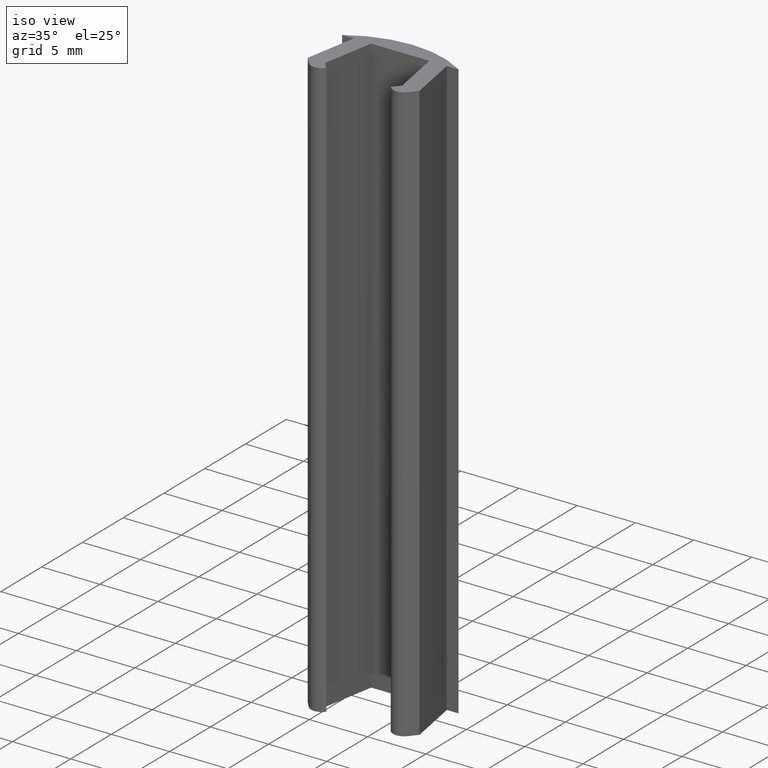
[diagram: clean part render]
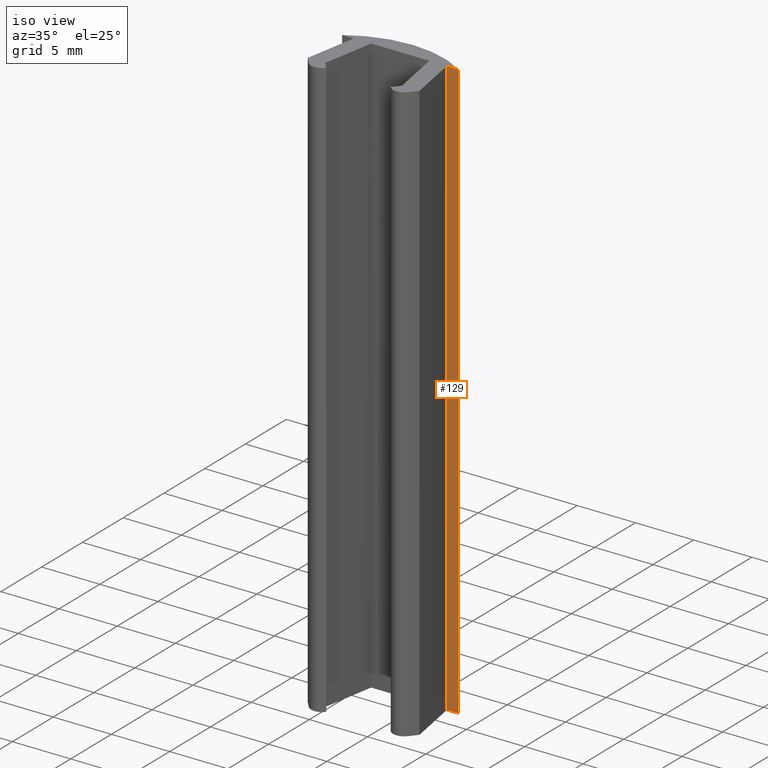
[diagram: same view with one face highlighted and labeled with its STEP entity id]
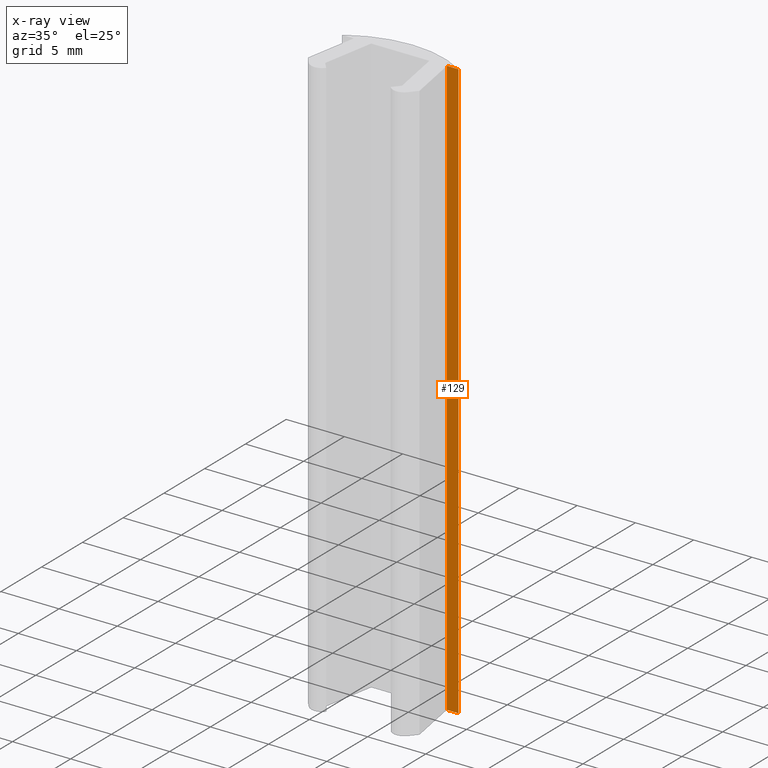
[diagram: x-ray of the same camera — body ghosted, the highlighted face saturated]
A machine part, iso view. The second image highlights one B-rep face of the part: STEP entity #129.
The next image is the same camera in x-ray: the body ghosted, the highlighted face saturated — about 0% of this face is hidden behind the body in this view.
In plain terms, the highlighted planar face has unit normal (0, 1, 0).
Its self-contained STEP definition (entity closure, byte-faithful):
#8 = CARTESIAN_POINT ( 'NONE',  ( 7.963294685841867200, 5.500000000000000000, 0.0000000000000000000 ) ) ;
#9 = CARTESIAN_POINT ( 'NONE',  ( 8.963294685248413900, 5.500000000429616300, 50.00000000000000000 ) ) ;
#39 = DIRECTION ( 'NONE',  ( 1.000000000000000000, 0.0000000000000000000, 0.0000000000000000000 ) ) ;
#49 = CARTESIAN_POINT ( 'NONE',  ( 7.963294686000001100, 5.500000000000000000, 50.00000000000000000 ) ) ;
#52 = CARTESIAN_POINT ( 'NONE',  ( 8.963294685248413900, 5.500000000429616300, 0.0000000000000000000 ) ) ;
#65 = CARTESIAN_POINT ( 'NONE',  ( 8.463294686000001100, 5.500000000000000000, 50.00000000000000000 ) ) ;
#66 = DIRECTION ( 'NONE',  ( 0.0000000000000000000, 0.0000000000000000000, 1.000000000000000000 ) ) ;
#67 = CARTESIAN_POINT ( 'NONE',  ( 8.963294684596828400, 5.500000000859232700, 25.00000000000000000 ) ) ;
#129 = ADVANCED_FACE ( 'NONE', ( #465 ), #234, .F. ) ;
#141 = EDGE_CURVE ( 'NONE', #222, #207, #244, .T. ) ;
#142 = EDGE_CURVE ( 'NONE', #231, #207, #242, .T. ) ;
#176 = EDGE_CURVE ( 'NONE', #231, #200, #273, .T. ) ;
#177 = EDGE_CURVE ( 'NONE', #222, #200, #318, .T. ) ;
#200 = VERTEX_POINT ( 'NONE', #9 ) ;
#207 = VERTEX_POINT ( 'NONE', #8 ) ;
#217 = DIRECTION ( 'NONE',  ( 0.0000000000000000000, 1.000000000000000000, 0.0000000000000000000 ) ) ;
#222 = VERTEX_POINT ( 'NONE', #49 ) ;
#231 = VERTEX_POINT ( 'NONE', #52 ) ;
#232 = CARTESIAN_POINT ( 'NONE',  ( 7.963294686000001100, 5.500000000000000000, 0.0000000000000000000 ) ) ;
#234 = PLANE ( 'NONE',  #521 ) ;
#237 = DIRECTION ( 'NONE',  ( 0.0000000000000000000, 0.0000000000000000000, 1.000000000000000000 ) ) ;
#241 = VECTOR ( 'NONE', #562, 1000.000000000000000 ) ;
#242 = LINE ( 'NONE', #557, #241 ) ;
#243 = VECTOR ( 'NONE', #556, 1000.000000000000000 ) ;
#244 = LINE ( 'NONE', #555, #243 ) ;
#273 = LINE ( 'NONE', #67, #322 ) ;
#317 = VECTOR ( 'NONE', #39, 1000.000000000000000 ) ;
#318 = LINE ( 'NONE', #65, #317 ) ;
#319 = ORIENTED_EDGE ( 'NONE', *, *, #176, .T. ) ;
#322 = VECTOR ( 'NONE', #66, 1000.000000000000000 ) ;
#349 = ORIENTED_EDGE ( 'NONE', *, *, #177, .F. ) ;
#350 = ORIENTED_EDGE ( 'NONE', *, *, #141, .T. ) ;
#351 = ORIENTED_EDGE ( 'NONE', *, *, #142, .F. ) ;
#390 = EDGE_LOOP ( 'NONE', ( #319, #349, #350, #351 ) ) ;
#465 = FACE_OUTER_BOUND ( 'NONE', #390, .T. ) ;
#521 = AXIS2_PLACEMENT_3D ( 'NONE', #232, #217, #237 ) ;
#555 = CARTESIAN_POINT ( 'NONE',  ( 7.963294686000001100, 5.500000000000000000, 25.00000000000000000 ) ) ;
#556 = DIRECTION ( 'NONE',  ( -0.0000000000000000000, -0.0000000000000000000, -1.000000000000000000 ) ) ;
#557 = CARTESIAN_POINT ( 'NONE',  ( 8.463294686000001100, 5.500000000000000000, 0.0000000000000000000 ) ) ;
#562 = DIRECTION ( 'NONE',  ( -1.000000000000000000, -0.0000000000000000000, -0.0000000000000000000 ) ) ;